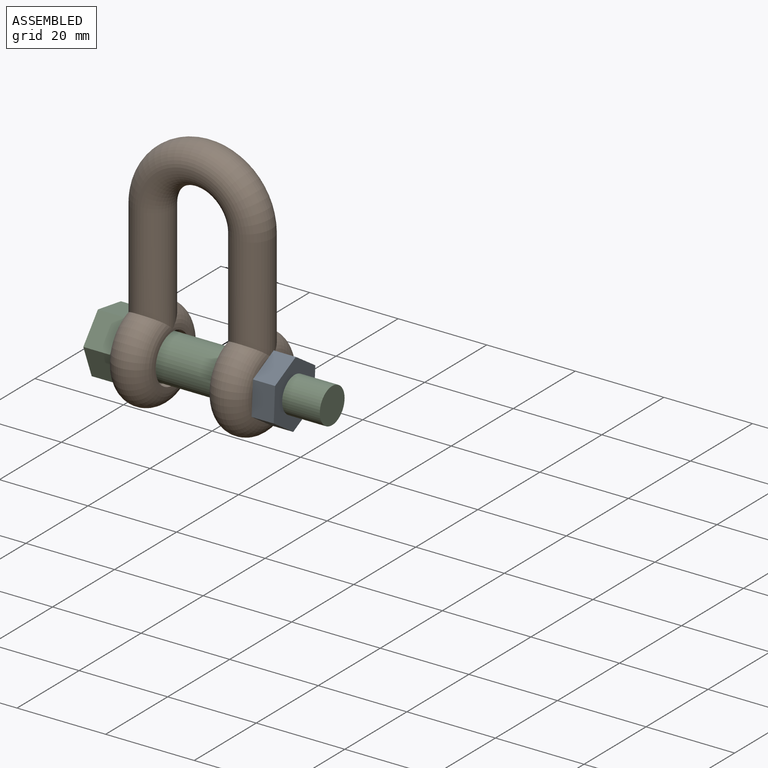
[diagram: assembled view]
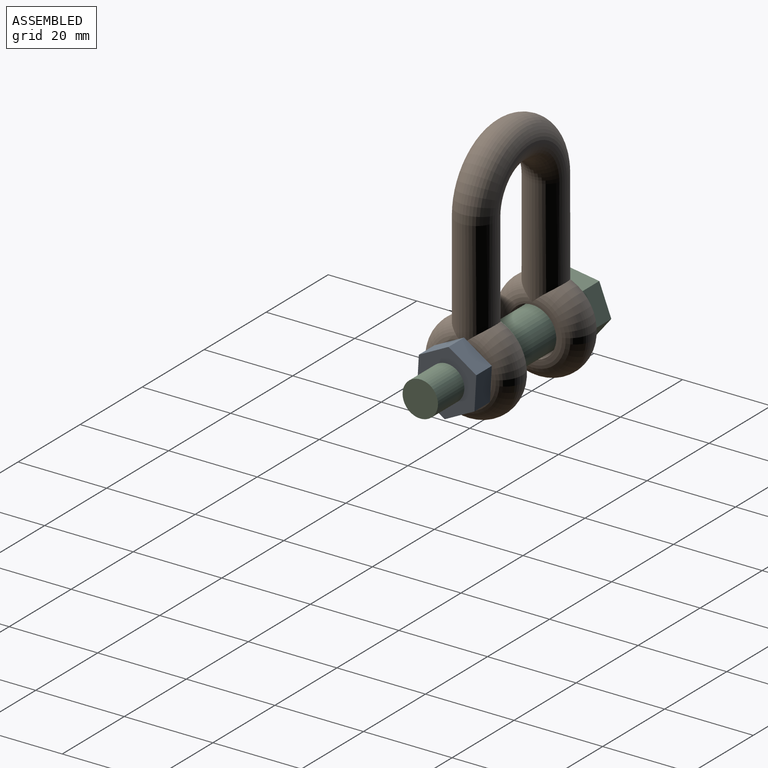
[diagram: assembled view, second angle]
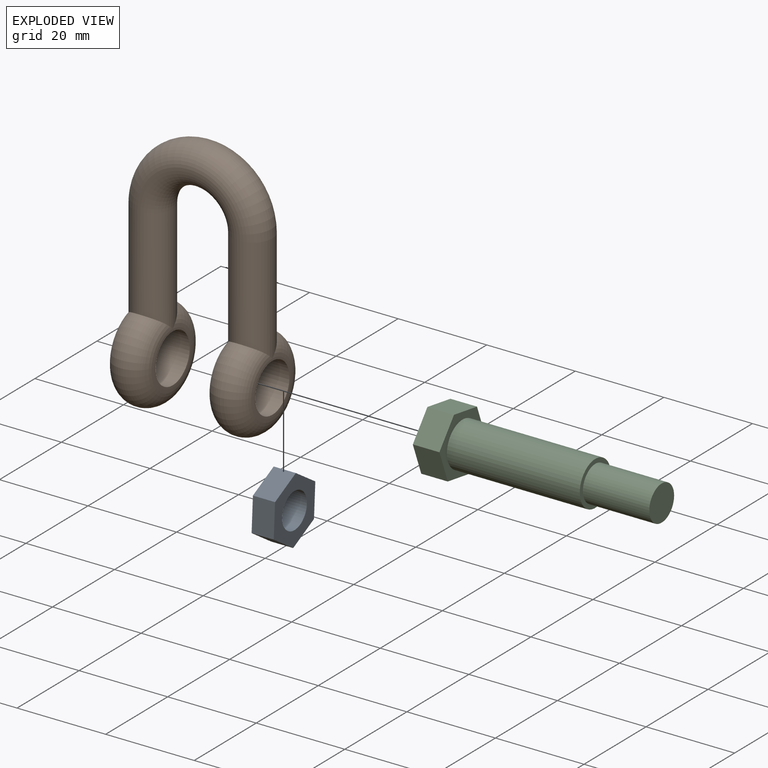
[diagram: exploded view]
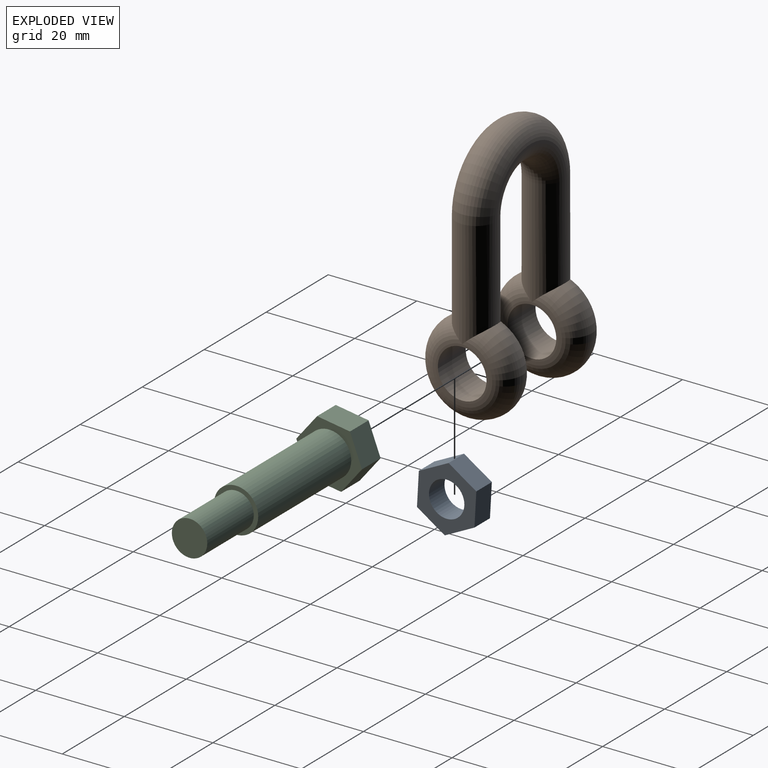
[diagram: exploded view, second angle]
ASSEMBLY  parts=3 mates=2
PART A: 9 faces, bbox 5x13.4x15 mm
  f0: plane 7.49x5mm, normal (0,1,-0.06), area 37.5mm2, adj f1,f6,f7,f8
  f1: plane 6.28x5mm, normal (0,0.55,0.84), area 37.5mm2, adj f0,f2,f7,f8
  f2: plane 6.7x5mm, normal (0,-0.45,0.89), area 37.5mm2, adj f1,f3,f7,f8
  f3: plane 7.49x5mm, normal (0,-1,0.06), area 37.5mm2, adj f2,f4,f7,f8
  f4: plane 6.28x5mm, normal (0,-0.55,-0.84), area 37.5mm2, adj f3,f6,f7,f8
  f5: cylinder r=4mm len=8mm, axis (-1,0,0), area 125.7mm2, adj f7,f8
  f6: plane 6.7x5mm, normal (0,0.45,-0.89), area 37.5mm2, adj f0,f4,f7,f8
  f7: plane 14.99x13.4mm, normal (1,0,0), area 96.1mm2, adj f0,f1,f2,f3,f4,f5,f6
  f8: plane 14.99x13.4mm, normal (-1,0,0), area 96.1mm2, adj f0,f1,f2,f3,f4,f5,f6
PART B: 11 faces, bbox 34.1x22.7x58.9 mm
  f0: plane 12x12mm, normal (-1,0,0), area 18.1mm2, adj f5,f6
  f1: plane 12x12mm, normal (1,0,0), area 18.1mm2, adj f5,f6
  f2: plane 12x12mm, normal (-1,0,0), area 18.1mm2, adj f4,f10
  f3: plane 12x12mm, normal (1,0,0), area 18.1mm2, adj f4,f10
  f4: cylinder r=5.5mm len=11mm, axis (-1,0,0), area 311mm2, adj f2,f3
  f5: cylinder r=5.5mm len=11mm, axis (-1,0,0), area 311mm2, adj f0,f1
  f6: torus R=6mm, axis (1,0,0), area 704.4mm2, adj f0,f1,f7
  f7: cylinder r=4.5mm len=24.5mm, axis (0,0,-1), area 627mm2, adj f6,f8
  f8: torus R=11.25mm, axis (0,-1,0), area 999.3mm2, adj f7,f9
  f9: cylinder r=4.5mm len=24.5mm, axis (0,0,1), area 627mm2, adj f8,f10
  f10: torus R=6mm, axis (1,0,0), area 704.4mm2, adj f2,f3,f9
PART C: 12 faces, bbox 51x14.8x14 mm
  f0: plane 6x5.84mm, normal (0,-0.78,0.63), area 45mm2, adj f1,f5,f6,f7
  f1: plane 7.42x6mm, normal (0,0.15,0.99), area 45mm2, adj f0,f2,f6,f7
  f2: plane 7x6mm, normal (0,0.93,0.36), area 45mm2, adj f1,f3,f6,f7
  f3: plane 6x5.84mm, normal (0,0.78,-0.63), area 45mm2, adj f2,f4,f6,f7
  f4: plane 7.42x6mm, normal (0,-0.15,-0.99), area 45mm2, adj f3,f5,f6,f7
  f5: plane 7x6mm, normal (0,-0.93,-0.36), area 45mm2, adj f0,f4,f6,f7
  f6: plane 14.83x14mm, normal (-1,0,0), area 146.4mm2, adj f0,f1,f2,f3,f4,f5
  f7: plane 14.83x14mm, normal (1,0,0), area 67.8mm2, adj f0,f1,f2,f3,f4,f5,f8
  f8: cylinder r=5mm len=30mm, axis (-1,0,0), area 942.5mm2, adj f7,f9
  f9: plane 10x10mm, normal (1,0,0), area 28.3mm2, adj f8,f10
  f10: cylinder r=4mm len=15mm, axis (-1,0,0), area 377mm2, adj f9,f11
  f11: plane 8x8mm, normal (1,0,0), area 50.3mm2, adj f10
PLACE A t=(-17.6,4.98,4.43)mm
PLACE B t=(-17.6,4.98,4.43)mm
PLACE C t=(-17.6,4.98,4.43)mm
MATE fastened C.f8 <-> B.f4  axis (1,0,0) through (-33.35,4.98,4.43)mm
MATE fastened A.f5 <-> B.f4  axis (-1,0,0) through (-1.85,4.98,4.43)mm
